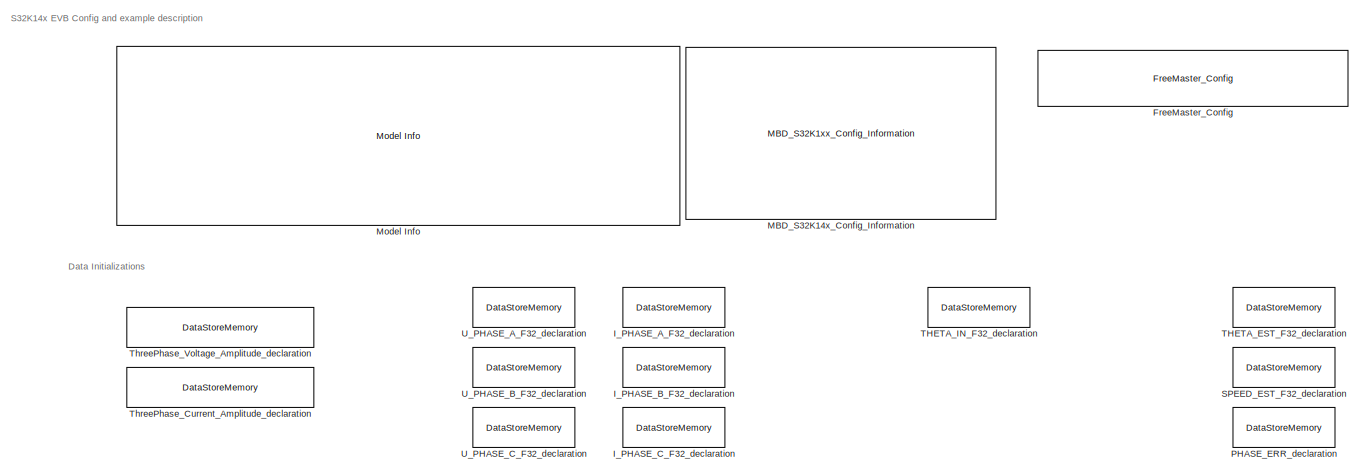
[diagram: root canvas - part 1/3, top center region]
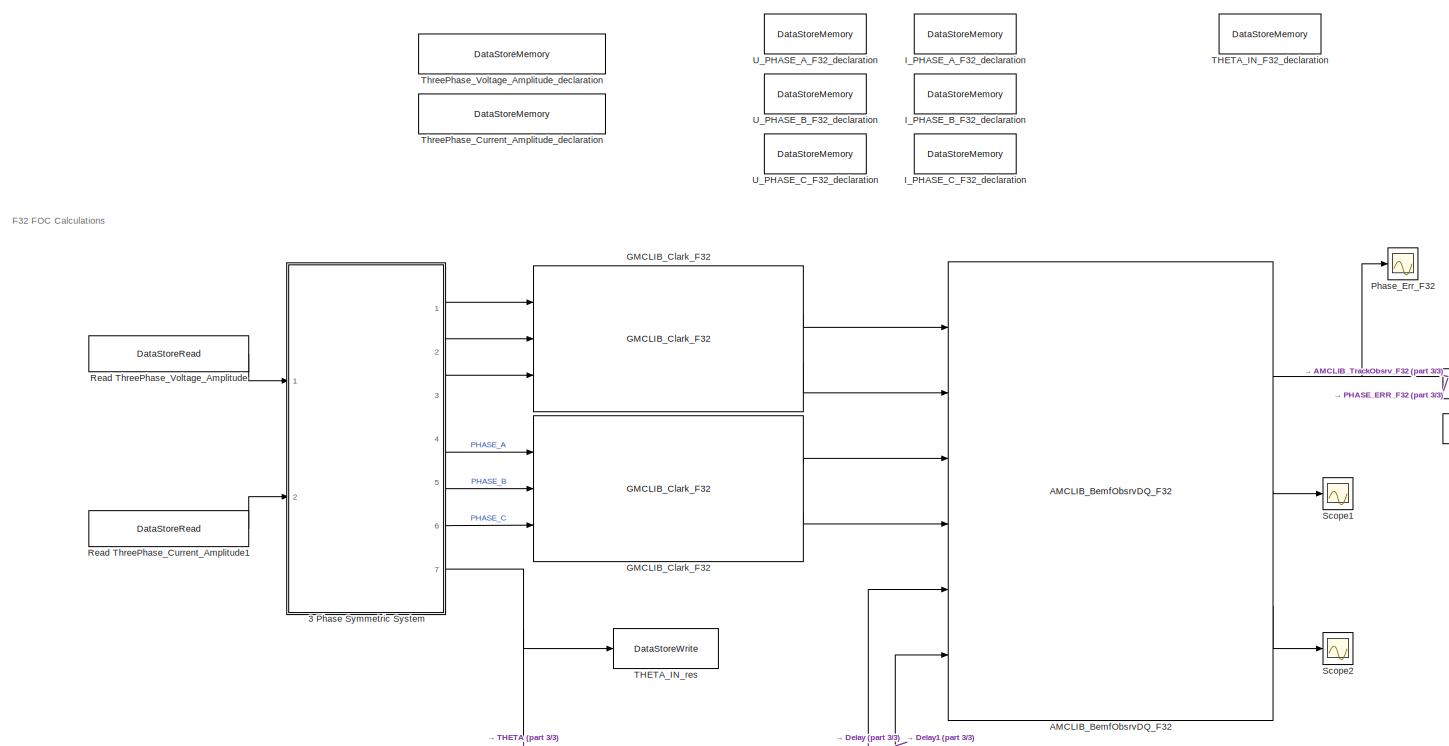
[diagram: root canvas - part 2/3, central region]
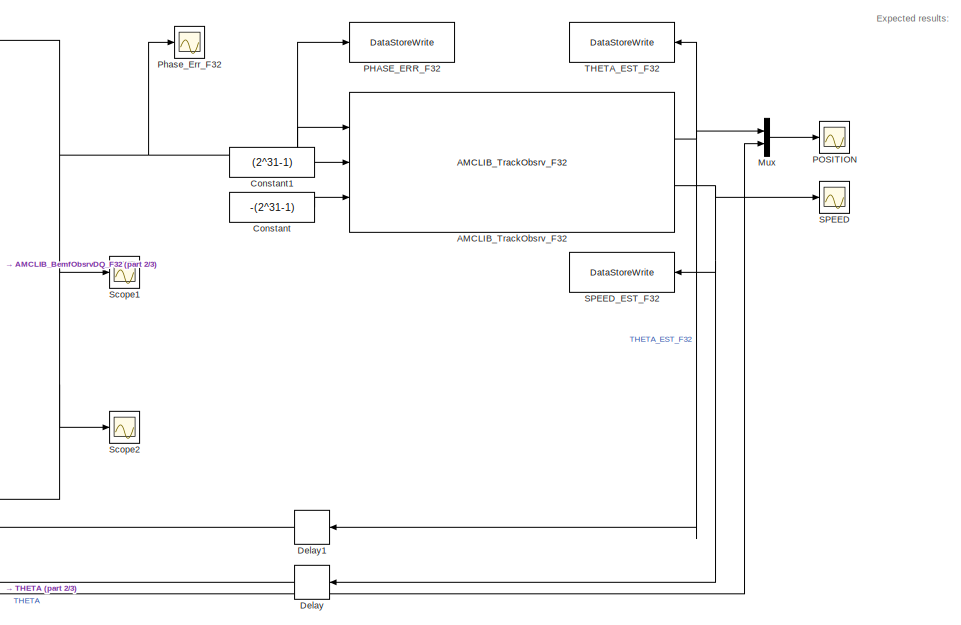
[diagram: root canvas - part 3/3, bottom right region]
MODEL ammclib_amclib_observer_F32_s32k14x
KIND model
CONFIG InitFcn = mbd_s32k_consistency_checks(bdroot(gcs));
CONFIG PostLoadFcn = ammclib_amclib_observer_s32k14x_param();
BLOCK [DataStoreRead]  Read ThreePhase_Current_Amplitude1
  DataStoreName = ThreePhase_Current_Amplitude
  Ports = [0, 1]
  SID = 1142
BLOCK [DataStoreRead]  Read ThreePhase_Voltage_Amplitude
  DataStoreName = ThreePhase_Voltage_Amplitude
  Ports = [0, 1]
  SID = 989
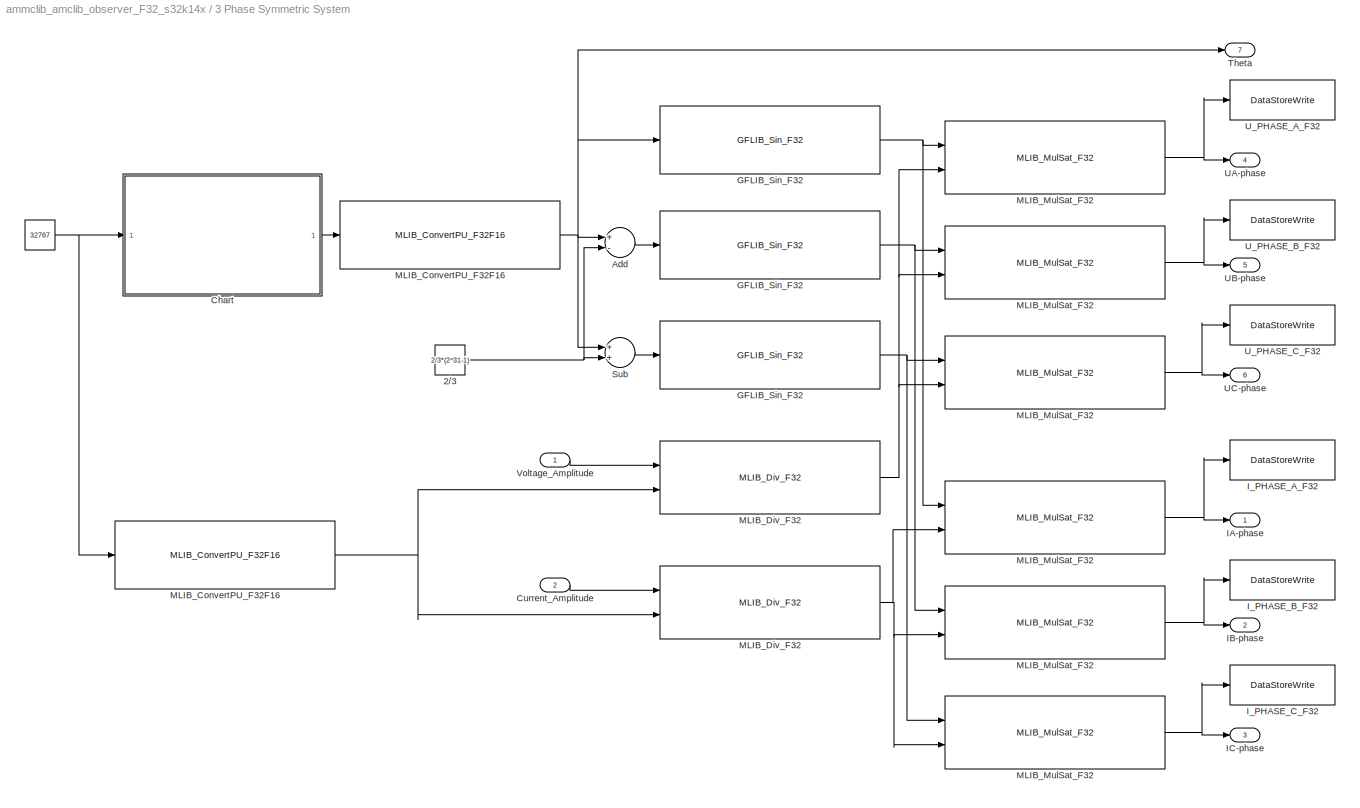
BLOCK [SubSystem] 3 Phase Symmetric System
  Ports = [2, 7]
  RequestExecContextInheritance = off
  SID = 990
  Variant = off
BLOCK [Constant] 3 Phase Symmetric System/ 
  OutDataTypeStr = int16
  SID = 1017
  Value = 32767
BLOCK [Reference] 3 Phase Symmetric System/  MLIB_MulSat_F32    REF=ammclib_bam_s32k14x/MLIB/bam_f32/MLIB_MulSat_F32  (lib defined in mdl_f341c9dd7fd9)
  Ports = [2, 1]
  SID = 1148
  SourceBlock = ammclib_bam_s32k14x/MLIB/bam_f32/MLIB_MulSat_F32
  SourceType = MLIB_MulSat_F32
BLOCK [Reference] 3 Phase Symmetric System/ MLIB_MulSat_F32  REF=ammclib_bam_s32k14x/MLIB/bam_f32/MLIB_MulSat_F32  (lib defined in mdl_f341c9dd7fd9)
  Ports = [2, 1]
  SID = 1146
  SourceBlock = ammclib_bam_s32k14x/MLIB/bam_f32/MLIB_MulSat_F32
  SourceType = MLIB_MulSat_F32
BLOCK [Reference] 3 Phase Symmetric System/ MLIB_MulSat_F32   REF=ammclib_bam_s32k14x/MLIB/bam_f32/MLIB_MulSat_F32  (lib defined in mdl_f341c9dd7fd9)
  Ports = [2, 1]
  SID = 1147
  SourceBlock = ammclib_bam_s32k14x/MLIB/bam_f32/MLIB_MulSat_F32
  SourceType = MLIB_MulSat_F32
BLOCK [Constant] 3 Phase Symmetric System/2//3
  OutDataTypeStr = int32
  SID = 1182
  Value = 2/3*(2^31-1)
BLOCK [Sum] 3 Phase Symmetric System/Add
  InputSameDT = off
  Inputs = +-
  OutDataTypeStr = Inherit: Inherit via internal rule
  Ports = [2, 1]
  SID = 996
  SaturateOnIntegerOverflow = off
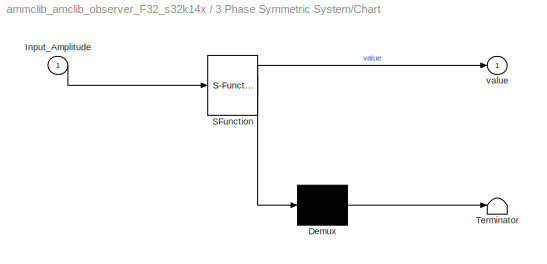
BLOCK [SubSystem] 3 Phase Symmetric System/Chart
  ErrorFcn = Stateflow.Translate.translate
  PermitHierarchicalResolution = ExplicitOnly
  Ports = [1, 1]
  RequestExecContextInheritance = off
  SFBlockType = Chart
  SID = 992
  TreatAsAtomicUnit = on
  Variant = off
BLOCK [Demux] 3 Phase Symmetric System/Chart/ Demux 
  Outputs = 1
  Ports = [1, 1]
  SID = 992::35
BLOCK [S-Function] 3 Phase Symmetric System/Chart/ SFunction 
  EnableBusSupport = off
  FunctionName = sf_sfun
  PortCounts = [1 2]
  Ports = [1, 2]
  SFcnIsStateOwnerBlock = off
  SFunctionDeploymentMode = off
  SID = 992::34
  Tag = Stateflow S-Function ammclib_amclib_observer_F32_s32k14x 4
BLOCK [Terminator] 3 Phase Symmetric System/Chart/ Terminator 
  SID = 992::36
BLOCK [Inport] 3 Phase Symmetric System/Chart/Input_Amplitude
  IconDisplay = Port number
  SID = 992::30
BLOCK [Outport] 3 Phase Symmetric System/Chart/value
  IconDisplay = Port number
  SID = 992::5
BLOCK [Inport] 3 Phase Symmetric System/Current_Amplitude
  IconDisplay = Port number
  Port = 2
  SID = 1141
BLOCK [Reference] 3 Phase Symmetric System/GFLIB_Sin_F32  REF=ammclib_bam_s32k14x/GFLIB/bam_f32/GFLIB_Sin_F32  (lib defined in mdl_f341c9dd7fd9)
  Ports = [1, 1]
  SID = 1012
  SourceBlock = ammclib_bam_s32k14x/GFLIB/bam_f32/GFLIB_Sin_F32
  SourceType = GFLIB_Sin_F32
BLOCK [Reference] 3 Phase Symmetric System/GFLIB_Sin_F32   REF=ammclib_bam_s32k14x/GFLIB/bam_f32/GFLIB_Sin_F32  (lib defined in mdl_f341c9dd7fd9)
  Ports = [1, 1]
  SID = 1021
  SourceBlock = ammclib_bam_s32k14x/GFLIB/bam_f32/GFLIB_Sin_F32
  SourceType = GFLIB_Sin_F32
BLOCK [Reference] 3 Phase Symmetric System/GFLIB_Sin_F32    REF=ammclib_bam_s32k14x/GFLIB/bam_f32/GFLIB_Sin_F32  (lib defined in mdl_f341c9dd7fd9)
  Ports = [1, 1]
  SID = 1022
  SourceBlock = ammclib_bam_s32k14x/GFLIB/bam_f32/GFLIB_Sin_F32
  SourceType = GFLIB_Sin_F32
BLOCK [Outport] 3 Phase Symmetric System/IA-phase
  IconDisplay = Port number
  SID = 1152
BLOCK [Outport] 3 Phase Symmetric System/IB-phase
  IconDisplay = Port number
  Port = 2
  SID = 1153
BLOCK [Outport] 3 Phase Symmetric System/IC-phase
  IconDisplay = Port number
  Port = 3
  SID = 1154
BLOCK [DataStoreWrite] 3 Phase Symmetric System/I_PHASE_A_F32
  DataStoreName = I_PHASE_A_F32
  Ports = [1]
  SID = 1149
BLOCK [DataStoreWrite] 3 Phase Symmetric System/I_PHASE_B_F32
  DataStoreName = I_PHASE_B_F32
  Ports = [1]
  SID = 1150
BLOCK [DataStoreWrite] 3 Phase Symmetric System/I_PHASE_C_F32
  DataStoreName = I_PHASE_C_F32
  Ports = [1]
  SID = 1151
BLOCK [Reference] 3 Phase Symmetric System/MLIB_ConvertPU_F32F16  REF=ammclib_bam_s32k14x/MLIB/bam_f32/MLIB_ConvertPU_F32F16  (lib defined in mdl_f341c9dd7fd9)
  Ports = [1, 1]
  SID = 1181
  SourceBlock = ammclib_bam_s32k14x/MLIB/bam_f32/MLIB_ConvertPU_F32F16
  SourceType = MLIB_ConvertPU_F32
BLOCK [Reference] 3 Phase Symmetric System/MLIB_ConvertPU_F32F16      REF=ammclib_bam_s32k14x/MLIB/bam_f32/MLIB_ConvertPU_F32F16  (lib defined in mdl_f341c9dd7fd9)
  Ports = [1, 1]
  SID = 1183
  SourceBlock = ammclib_bam_s32k14x/MLIB/bam_f32/MLIB_ConvertPU_F32F16
  SourceType = MLIB_ConvertPU_F32
BLOCK [Reference] 3 Phase Symmetric System/MLIB_Div_F32  REF=ammclib_bam_s32k14x/MLIB/bam_f32/MLIB_Div_F32  (lib defined in mdl_f341c9dd7fd9)
  Ports = [2, 1]
  SID = 1028
  SourceBlock = ammclib_bam_s32k14x/MLIB/bam_f32/MLIB_Div_F32
  SourceType = MLIB_Div_F32
BLOCK [Reference] 3 Phase Symmetric System/MLIB_Div_F32    REF=ammclib_bam_s32k14x/MLIB/bam_f32/MLIB_Div_F32  (lib defined in mdl_f341c9dd7fd9)
  Ports = [2, 1]
  SID = 1145
  SourceBlock = ammclib_bam_s32k14x/MLIB/bam_f32/MLIB_Div_F32
  SourceType = MLIB_Div_F32
BLOCK [Reference] 3 Phase Symmetric System/MLIB_MulSat_F32  REF=ammclib_bam_s32k14x/MLIB/bam_f32/MLIB_MulSat_F32  (lib defined in mdl_f341c9dd7fd9)
  Ports = [2, 1]
  SID = 1031
  SourceBlock = ammclib_bam_s32k14x/MLIB/bam_f32/MLIB_MulSat_F32
  SourceType = MLIB_MulSat_F32
BLOCK [Reference] 3 Phase Symmetric System/MLIB_MulSat_F32   REF=ammclib_bam_s32k14x/MLIB/bam_f32/MLIB_MulSat_F32  (lib defined in mdl_f341c9dd7fd9)
  Ports = [2, 1]
  SID = 1033
  SourceBlock = ammclib_bam_s32k14x/MLIB/bam_f32/MLIB_MulSat_F32
  SourceType = MLIB_MulSat_F32
BLOCK [Reference] 3 Phase Symmetric System/MLIB_MulSat_F32    REF=ammclib_bam_s32k14x/MLIB/bam_f32/MLIB_MulSat_F32  (lib defined in mdl_f341c9dd7fd9)
  Ports = [2, 1]
  SID = 1034
  SourceBlock = ammclib_bam_s32k14x/MLIB/bam_f32/MLIB_MulSat_F32
  SourceType = MLIB_MulSat_F32
BLOCK [Sum] 3 Phase Symmetric System/Sub
  InputSameDT = off
  OutDataTypeStr = Inherit: Inherit via internal rule
  Ports = [2, 1]
  SID = 998
  SaturateOnIntegerOverflow = off
BLOCK [Outport] 3 Phase Symmetric System/Theta
  IconDisplay = Port number
  Port = 7
  SID = 1049
BLOCK [Outport] 3 Phase Symmetric System/UA-phase
  IconDisplay = Port number
  Port = 4
  SID = 994
BLOCK [Outport] 3 Phase Symmetric System/UB-phase
  IconDisplay = Port number
  Port = 5
  SID = 995
BLOCK [Outport] 3 Phase Symmetric System/UC-phase
  IconDisplay = Port number
  Port = 6
  SID = 997
BLOCK [DataStoreWrite] 3 Phase Symmetric System/U_PHASE_A_F32
  DataStoreName = U_PHASE_A_F32
  Ports = [1]
  SID = 1077
BLOCK [DataStoreWrite] 3 Phase Symmetric System/U_PHASE_B_F32
  DataStoreName = U_PHASE_B_F32
  Ports = [1]
  SID = 1078
BLOCK [DataStoreWrite] 3 Phase Symmetric System/U_PHASE_C_F32
  DataStoreName = U_PHASE_C_F32
  Ports = [1]
  SID = 1079
BLOCK [Inport] 3 Phase Symmetric System/Voltage_Amplitude 
  IconDisplay = Port number
  SID = 991
BLOCK [Reference] AMCLIB_BemfObsrvDQ_F32  REF=ammclib_bam_s32k14x/AMCLIB/bam_f32/AMCLIB_BemfObsrvDQ_F32  (lib defined in mdl_f341c9dd7fd9)
  Ports = [6, 3]
  SID = 1129
  SourceBlock = ammclib_bam_s32k14x/AMCLIB/bam_f32/AMCLIB_BemfObsrvDQ_F32
  SourceType = AMCLIB_BemfObsrvDQ_F32
  f32CC1sc_D = f32CC1sc_D
  f32CC1sc_Q = f32CC1sc_Q
  f32CC2sc_D = f32CC2sc_D
  f32CC2sc_Q = f32CC2sc_Q
  f32EGain = f32EGain
  f32IGain = f32IGain
  f32LowerLimit_D = f32LowerLimit_D
  f32LowerLimit_Q = f32LowerLimit_Q
  f32UGain = f32UGain
  f32UpperLimit_D = f32UpperLimit_D
  f32UpperLimit_Q = f32UpperLimit_Q
  f32WIGain = f32WIGain
  s16Shift = s16Shift
  u16NShift = u16NShift
BLOCK [Reference] AMCLIB_TrackObsrv_F32  REF=ammclib_bam_s32k14x/AMCLIB/bam_f32/AMCLIB_TrackObsrv_F32  (lib defined in mdl_f341c9dd7fd9)
  Ports = [3, 2]
  SID = 1165
  SourceBlock = ammclib_bam_s32k14x/AMCLIB/bam_f32/AMCLIB_TrackObsrv_F32
  SourceType = AMCLIB_TrackObsrv_F32
  f32C1 = f32C1
  f32CC1sc = f32CC1sc
  f32CC2sc = f32CC2sc
  u16IntegNShift = u16IntegNShift
  u16NShift = u16NShift
BLOCK [Constant] Constant
  OutDataTypeStr = Inherit: Inherit via back propagation
  SID = 1166
  Value = -(2^31-1)
BLOCK [Constant] Constant1
  OutDataTypeStr = Inherit: Inherit via back propagation
  SID = 1168
  Value = (2^31-1)
BLOCK [Delay] Delay
  DelayLength = 1
  InitialCondition = 0
  InputPortMap = u0
  Ports = [1, 1]
  SID = 1171
BLOCK [Delay] Delay1
  DelayLength = 1
  InitialCondition = 0
  InputPortMap = u0
  Ports = [1, 1]
  SID = 1172
BLOCK [Reference] FreeMaster_Config  REF=mbd_s32k1xx_ec_toolbox/Utility Blocks/FreeMaster_Config
  Ports = []
  SID = 564
  SourceBlock = mbd_s32k1xx_ec_toolbox/Utility Blocks/FreeMaster_Config
  SourceType = fm_s32k_config
  baudrate = 115200
  comm_buffer_size = 255
  comm_buffer_size_auto = on
  comm_rqueue_size = 32
  comm_rqueue_size_default = on
  interface = LPUART1
  isr_prio = 1
  max_rec_vars = 8
  max_scope_vars = 8
  mode = Short Interrupt
  rec_buff_size = 1024
  rec_timebase = 0
  rec_timebase_unit = milliseconds
  rxd = PTC6: [LPUART1_RX | Receive]
  show_adv_opts = on
  txd = PTC7: [LPUART1_TX | Transmit]
  use_recorder = on
  use_scope = on
BLOCK [Reference] GMCLIB_Clark_F32  REF=ammclib_bam_s32k14x/GMCLIB/bam_f32/GMCLIB_Clark_F32  (lib defined in mdl_f341c9dd7fd9)
  Ports = [3, 2]
  SID = 1035
  SourceBlock = ammclib_bam_s32k14x/GMCLIB/bam_f32/GMCLIB_Clark_F32
  SourceType = GMCLIB_Clark_F32
BLOCK [Reference] GMCLIB_Clark_F32   REF=ammclib_bam_s32k14x/GMCLIB/bam_f32/GMCLIB_Clark_F32  (lib defined in mdl_f341c9dd7fd9)
  Ports = [3, 2]
  SID = 1159
  SourceBlock = ammclib_bam_s32k14x/GMCLIB/bam_f32/GMCLIB_Clark_F32
  SourceType = GMCLIB_Clark_F32
BLOCK [DataStoreMemory] I_PHASE_A_F32_declaration
  DataStoreName = I_PHASE_A_F32
  OutDataTypeStr = int32
  Priority = 2
  ReadBeforeWriteMsg = warning
  SID = 1155
  ShowAdditionalParam = off
  WriteAfterReadMsg = warning
  WriteAfterWriteMsg = warning
BLOCK [DataStoreMemory] I_PHASE_B_F32_declaration
  DataStoreName = I_PHASE_B_F32
  OutDataTypeStr = int32
  Priority = 2
  ReadBeforeWriteMsg = warning
  SID = 1156
  ShowAdditionalParam = off
  WriteAfterReadMsg = warning
  WriteAfterWriteMsg = warning
BLOCK [DataStoreMemory] I_PHASE_C_F32_declaration
  DataStoreName = I_PHASE_C_F32
  OutDataTypeStr = int32
  Priority = 2
  ReadBeforeWriteMsg = warning
  SID = 1157
  ShowAdditionalParam = off
  WriteAfterReadMsg = warning
  WriteAfterWriteMsg = warning
BLOCK [Reference] MBD_S32K14x_Config_Information  REF=mbd_s32k1xx_ec_toolbox/MBD_S32K1xx_Config_Information
  ADC_PcrCheckEnDis = on
  AMMCLIB_PcrCheckEnDis = on
  CMP_PcrCheckEnDis = on
  CSEc_PcrCheckEnDis = on
  ConfigParams_PcrCheckEnDis = on
  FM_PcrCheckEnDis = on
  FTM_Dual_Edge_Inputs_PcrCheckEnDis = on
  FTM_Hall_Sensor_Inputs_PcrCheckEnDis = on
  FTM_Input_Edge_Inputs_PcrCheckEnDis = on
  FTM_PWM_PcrCheckEnDis = on
  FTM_Quadrature_Inputs_PcrCheckEnDis = on
  FlexCAN_PcrCheckEnDis = on
  FlexIO_PcrCheckEnDis = on
  GPIO_InputPcrCheckEnDis = on
  GPIO_OutputPcrCheckEnDis = on
  LIN_PcrCheckEnDis = on
  LPI2C_PcrCheckEnDis = on
  LPSPI_PcrCheckEnDis = on
  LPTMR_PcrCheckEnDis = on
  LPUART_PcrCheckEnDis = on
  ModelRef_PcrCheckEnDis = on
  PDB0_PcrCheckEnDis = on
  PIT_PcrCheckEnDis = on
  Ports = []
  Priority = 0
  Profile_PcrCheckEnDis = on
  RTC_PcrCheckEnDis = on
  SBC_PcrCheckEnDis = on
  SID = 1
  SourceBlock = mbd_s32k1xx_ec_toolbox/MBD_S32K1xx_Config_Information
  SourceType = MBDTBX_EC_S32K
  WDOG_PcrCheckEnDis = on
  config_params = []
  disp_str = Target : S32K142-16KB_SRAM\nPackage : 100-pin\nSystem clock : 80 MHz\nXTAL clock : External 8 MHz\nCompiler : GCC\nTarget Type : FLASH\nDownload Code after build : (OpenSDA: E)\nStep Tick Interrupt Priority : 15
  ds_import_enable = on
  eDMA_PcrCheckEnDis = on
  gcc_target_assemble_opts = -mcpu=cortex-m4 -mthumb -mfloat-abi=hard -mfpu=fpv4-sp-d16 -g
  gcc_target_compile_opts = -mcpu=cortex-m4 -mthumb -mfloat-abi=hard -mfpu=fpv4-sp-d16 -O1 -g -gstrict-dwarf
  gcc_target_default_lcf = on
  gcc_target_link_opts = -mcpu=cortex-m4 -mthumb -mfloat-abi=hard -mfpu=fpv4-sp-d16
  gcc_target_user_lcf = S32K144_64_flash.ld
  ghs_target_assemble_opts = -cpu=cortexm4f -fpu=vfpv4_d16
  ghs_target_compile_opts = -cpu=cortexm4f -thumb -DARM_MATH_CM4 -fpu=vfpv4_d16 -fsingle -Ogeneral -Wundef -Wimplicit-int -Wshadow -Wtrigraphs --no_commons --gnu_asm -gnu99 -gdwarf-2 -G
  ghs_target_default_lcf = off
  ghs_target_link_opts = -cpu=cortexm4f -thumb -fpu=vfpv4_d16
  ghs_target_user_lcf = S32K144_64_flash.ld
  iar_target_assemble_opts = --cpu Cortex-M4F --thumb --fpu VFPv4_sp
  iar_target_compile_opts = --cpu=Cortex-M4F --thumb --fpu=VFPv4_sp -Ol -e --debug --dlib_config normal
  iar_target_default_lcf = off
  iar_target_link_opts = --no_exceptions --vfe --inline
  iar_target_user_lcf = S32K144_64_flash.icf
  mbdt_ver = 0
  mcu_steptick_prio = 15
  mcu_steptick_timer = LPIT Channel 0
  mcu_system_clock_freq = 80
  mcu_target_name = S32K144
  mcu_target_package = 100-LQFP
  mcu_target_sram_size = 64KB
  mcu_xtal_freq = External 8
  pil_download_enable = off
  pil_download_rate = 57600
  pil_opensda_drive = Custom
  pil_opensda_drive_custom = D
  pil_uart_instance = 0
  pil_uart_rx = PTA2: [LPUART0_RX | Receive]
  pil_uart_tx = PTA3: [LPUART0_TX | Transmit]
  rbl_com_port = Custom
  rbl_com_port_custom = COM1
  rbl_download_enable = on
  rbl_download_interface = OpenSDA
  rbl_restart_request = off
  rbl_start_delay = 5000000
  target_compiler = GCC
  target_memory = FLASH
BLOCK [Reference] Model Info  REF=simulink/Model-Wide\nUtilities/Model Info
  DisplayStringWithTags = Model Name: %<ModelName>\n\nDescription: %<Description>
  Frame = off
  HorizontalTextAlignment = Left
  LeftAlignmentValue = 0.02
  MaskDisplayString = Model Name: ammclib_amclib_observer_F32_s32k14x\\n\\nDescription: This model tests the AMMCLIB AMCLIB OBSERVER F32 blocks\\n\\nValidation:\\n- Run the model in Simulation and check the results\\n- Open Freemaster (ammclib_amclib_observer_F32_s32k14x.pmp) and compare the HW results against the Simulated ones
  Ports = []
  SID = 524
  SourceBlock = simulink/Model-Wide\nUtilities/Model Info
  SourceProductBaseCode = SL
  SourceProductName = Simulink
  SourceType = CMBlock
BLOCK [Mux] Mux
  DisplayOption = bar
  Inputs = 2
  Ports = [2, 1]
  SID = 1174
BLOCK [DataStoreWrite] PHASE_ERR_F32
  DataStoreName = PHASE_ERR_F32
  Ports = [1]
  SID = 1178
BLOCK [DataStoreMemory] PHASE_ERR_declaration
  DataStoreName = PHASE_ERR_F32
  OutDataTypeStr = int32
  Priority = 2
  ReadBeforeWriteMsg = warning
  SID = 1177
  ShowAdditionalParam = off
  WriteAfterReadMsg = warning
  WriteAfterWriteMsg = warning
BLOCK [Scope] POSITION
  NumInputPorts = 1
  Ports = [1]
  SID = 1175
  ScopeSpecificationString = Simulink.scopes.TimeScopeBlockCfg('CurrentConfiguration', extmgr.ConfigurationSet(extmgr.Configuration('Core','General UI',true),extmgr.Configuration('Core','Source UI',true),extmgr.Configuration('Sources','WiredSimulink',true),extmgr.Configuration('Visuals','Time Domain',true,'SerializedDisplays',{struct('MinYLimReal','-2684011024.625','MaxYLimReal','2684243571.625','YLabelReal','','MinYLimMag','...<+1399ch>
BLOCK [Scope] Phase_Err_F32
  NumInputPorts = 1
  Ports = [1]
  SID = 1135
  ScopeSpecificationString = Simulink.scopes.TimeScopeBlockCfg('CurrentConfiguration', extmgr.ConfigurationSet(extmgr.Configuration('Core','General UI',true),extmgr.Configuration('Core','Source UI',true),extmgr.Configuration('Sources','WiredSimulink',true,'DataLoggingVariableName','ScopeData1'),extmgr.Configuration('Visuals','Time Domain',true,'SerializedDisplays',{struct('MinYLimReal','-721.25','MaxYLimReal','1481.25','YLabe...<+1383ch>
BLOCK [Scope] SPEED
  NumInputPorts = 1
  Ports = [1]
  SID = 1170
  ScopeSpecificationString = Simulink.scopes.TimeScopeBlockCfg('CurrentConfiguration', extmgr.ConfigurationSet(extmgr.Configuration('Core','General UI',true),extmgr.Configuration('Core','Source UI',true),extmgr.Configuration('Sources','WiredSimulink',true,'DataLoggingVariableName','ScopeData9'),extmgr.Configuration('Visuals','Time Domain',true,'SerializedDisplays',{struct('MinYLimReal','-7907686.375','MaxYLimReal','27660357.3...<+1420ch>
BLOCK [DataStoreWrite] SPEED_EST_F32
  DataStoreName = SPEED_EST_F32
  Ports = [1]
  SID = 1180
BLOCK [DataStoreMemory] SPEED_EST_F32_declaration
  DataStoreName = SPEED_EST_F32
  OutDataTypeStr = int32
  Priority = 2
  ReadBeforeWriteMsg = warning
  SID = 1176
  ShowAdditionalParam = off
  WriteAfterReadMsg = warning
  WriteAfterWriteMsg = warning
BLOCK [Scope] Scope1
  NumInputPorts = 1
  Ports = [1]
  SID = 1136
  ScopeSpecificationString = Simulink.scopes.TimeScopeBlockCfg('CurrentConfiguration', extmgr.ConfigurationSet(extmgr.Configuration('Core','General UI',true),extmgr.Configuration('Core','Source UI',true),extmgr.Configuration('Sources','WiredSimulink',true,'DataLoggingVariableName','ScopeData2'),extmgr.Configuration('Visuals','Time Domain',true,'SerializedDisplays',{struct('MinYLimReal','-2105.625','MaxYLimReal','320.625','YLa...<+1391ch>
BLOCK [Scope] Scope2
  NumInputPorts = 1
  Ports = [1]
  SID = 1137
  ScopeSpecificationString = Simulink.scopes.TimeScopeBlockCfg('CurrentConfiguration', extmgr.ConfigurationSet(extmgr.Configuration('Core','General UI',true),extmgr.Configuration('Core','Source UI',true),extmgr.Configuration('Sources','WiredSimulink',true,'DataLoggingVariableName','ScopeData3'),extmgr.Configuration('Visuals','Time Domain',true,'SerializedDisplays',{struct('MinYLimReal','-10322.00000','MaxYLimReal','18958.0000...<+1413ch>
BLOCK [DataStoreWrite] THETA_EST_F32
  DataStoreName = THETA_EST_F32
  Ports = [1]
  SID = 1179
BLOCK [DataStoreMemory] THETA_EST_F32_declaration
  DataStoreName = THETA_EST_F32
  OutDataTypeStr = int32
  Priority = 2
  ReadBeforeWriteMsg = warning
  SID = 1173
  ShowAdditionalParam = off
  WriteAfterReadMsg = warning
  WriteAfterWriteMsg = warning
BLOCK [DataStoreMemory] THETA_IN_F32_declaration
  DataStoreName = THETA_IN_F32
  OutDataTypeStr = int32
  Priority = 2
  ReadBeforeWriteMsg = warning
  SID = 580
  ShowAdditionalParam = off
  WriteAfterReadMsg = warning
  WriteAfterWriteMsg = warning
BLOCK [DataStoreWrite] THETA_IN_res
  DataStoreName = THETA_IN_F32
  Ports = [1]
  SID = 707
BLOCK [DataStoreMemory] ThreePhase_Current_Amplitude_declaration
  DataStoreName = ThreePhase_Current_Amplitude
  InitialValue = 0.3*(2^31-1)
  OutDataTypeStr = int32
  OutMax = 2^31-1
  OutMin = -(2^31-1)
  Priority = 1
  SID = 1140
  ShowAdditionalParam = off
  WriteAfterReadMsg = warning
  WriteAfterWriteMsg = warning
BLOCK [DataStoreMemory] ThreePhase_Voltage_Amplitude_declaration
  DataStoreName = ThreePhase_Voltage_Amplitude
  InitialValue = 0.61*(2^31-1)
  OutDataTypeStr = int32
  OutMax = 2^31-1
  OutMin = -(2^31-1)
  Priority = 1
  SID = 988
  ShowAdditionalParam = off
  WriteAfterReadMsg = warning
  WriteAfterWriteMsg = warning
BLOCK [DataStoreMemory] U_PHASE_A_F32_declaration
  DataStoreName = U_PHASE_A_F32
  OutDataTypeStr = int32
  Priority = 2
  ReadBeforeWriteMsg = warning
  SID = 778
  ShowAdditionalParam = off
  WriteAfterReadMsg = warning
  WriteAfterWriteMsg = warning
BLOCK [DataStoreMemory] U_PHASE_B_F32_declaration
  DataStoreName = U_PHASE_B_F32
  OutDataTypeStr = int32
  Priority = 2
  ReadBeforeWriteMsg = warning
  SID = 1075
  ShowAdditionalParam = off
  WriteAfterReadMsg = warning
  WriteAfterWriteMsg = warning
BLOCK [DataStoreMemory] U_PHASE_C_F32_declaration
  DataStoreName = U_PHASE_C_F32
  OutDataTypeStr = int32
  Priority = 2
  ReadBeforeWriteMsg = warning
  SID = 1076
  ShowAdditionalParam = off
  WriteAfterReadMsg = warning
  WriteAfterWriteMsg = warning
ANNOTATION (root): \n \n Expected results: \n
ANNOTATION (root): Data Initializations
ANNOTATION (root): F32 FOC Calculations
ANNOTATION (root): S32K14x EVB Config and example description
LINE  Read ThreePhase_Current_Amplitude1:1 -> 3 Phase Symmetric System:2
LINE  Read ThreePhase_Voltage_Amplitude:1 -> 3 Phase Symmetric System:1
NET 3 Phase Symmetric System/  MLIB_MulSat_F32  :1 -> 3 Phase Symmetric System/IC-phase:1, 3 Phase Symmetric System/I_PHASE_C_F32:1
NET 3 Phase Symmetric System/ :1 -> 3 Phase Symmetric System/Chart:1, 3 Phase Symmetric System/MLIB_ConvertPU_F32F16    :1
NET 3 Phase Symmetric System/ MLIB_MulSat_F32 :1 -> 3 Phase Symmetric System/IB-phase:1, 3 Phase Symmetric System/I_PHASE_B_F32:1
NET 3 Phase Symmetric System/ MLIB_MulSat_F32:1 -> 3 Phase Symmetric System/IA-phase:1, 3 Phase Symmetric System/I_PHASE_A_F32:1
NET 3 Phase Symmetric System/2//3:1 -> 3 Phase Symmetric System/Add:2, 3 Phase Symmetric System/Sub:2
LINE 3 Phase Symmetric System/Add:1 -> 3 Phase Symmetric System/GFLIB_Sin_F32 :1
LINE 3 Phase Symmetric System/Chart/ Demux :1 -> 3 Phase Symmetric System/Chart/ Terminator :1
LINE 3 Phase Symmetric System/Chart/ SFunction :1 -> 3 Phase Symmetric System/Chart/ Demux :1
LINE 3 Phase Symmetric System/Chart/ SFunction :2 -> 3 Phase Symmetric System/Chart/value:1
LINE 3 Phase Symmetric System/Chart/Input_Amplitude:1 -> 3 Phase Symmetric System/Chart/ SFunction :1
LINE 3 Phase Symmetric System/Chart:1 -> 3 Phase Symmetric System/MLIB_ConvertPU_F32F16:1
LINE 3 Phase Symmetric System/Current_Amplitude:1 -> 3 Phase Symmetric System/MLIB_Div_F32  :1
NET 3 Phase Symmetric System/GFLIB_Sin_F32  :1 -> 3 Phase Symmetric System/  MLIB_MulSat_F32  :1, 3 Phase Symmetric System/MLIB_MulSat_F32  :1
NET 3 Phase Symmetric System/GFLIB_Sin_F32 :1 -> 3 Phase Symmetric System/ MLIB_MulSat_F32 :1, 3 Phase Symmetric System/MLIB_MulSat_F32 :1
NET 3 Phase Symmetric System/GFLIB_Sin_F32:1 -> 3 Phase Symmetric System/ MLIB_MulSat_F32:1, 3 Phase Symmetric System/MLIB_MulSat_F32:1
NET 3 Phase Symmetric System/MLIB_ConvertPU_F32F16    :1 -> 3 Phase Symmetric System/MLIB_Div_F32  :2, 3 Phase Symmetric System/MLIB_Div_F32:2
NET 3 Phase Symmetric System/MLIB_ConvertPU_F32F16:1 -> 3 Phase Symmetric System/Add:1, 3 Phase Symmetric System/GFLIB_Sin_F32:1, 3 Phase Symmetric System/Sub:1, 3 Phase Symmetric System/Theta:1
NET 3 Phase Symmetric System/MLIB_Div_F32  :1 -> 3 Phase Symmetric System/  MLIB_MulSat_F32  :2, 3 Phase Symmetric System/ MLIB_MulSat_F32 :2, 3 Phase Symmetric System/ MLIB_MulSat_F32:2
NET 3 Phase Symmetric System/MLIB_Div_F32:1 -> 3 Phase Symmetric System/MLIB_MulSat_F32  :2, 3 Phase Symmetric System/MLIB_MulSat_F32 :2, 3 Phase Symmetric System/MLIB_MulSat_F32:2
NET 3 Phase Symmetric System/MLIB_MulSat_F32  :1 -> 3 Phase Symmetric System/UC-phase:1, 3 Phase Symmetric System/U_PHASE_C_F32:1
NET 3 Phase Symmetric System/MLIB_MulSat_F32 :1 -> 3 Phase Symmetric System/UB-phase:1, 3 Phase Symmetric System/U_PHASE_B_F32:1
NET 3 Phase Symmetric System/MLIB_MulSat_F32:1 -> 3 Phase Symmetric System/UA-phase:1, 3 Phase Symmetric System/U_PHASE_A_F32:1
LINE 3 Phase Symmetric System/Sub:1 -> 3 Phase Symmetric System/GFLIB_Sin_F32  :1
LINE 3 Phase Symmetric System/Voltage_Amplitude :1 -> 3 Phase Symmetric System/MLIB_Div_F32:1
LINE 3 Phase Symmetric System:1 -> GMCLIB_Clark_F32:1
LINE 3 Phase Symmetric System:2 -> GMCLIB_Clark_F32:2
LINE 3 Phase Symmetric System:3 -> GMCLIB_Clark_F32:3
LINE 3 Phase Symmetric System:4 -> GMCLIB_Clark_F32 :1
LINE 3 Phase Symmetric System:5 -> GMCLIB_Clark_F32 :2
LINE 3 Phase Symmetric System:6 -> GMCLIB_Clark_F32 :3
NET 3 Phase Symmetric System:7 -> Mux:2, THETA_IN_res:1
NET AMCLIB_BemfObsrvDQ_F32:1 -> AMCLIB_TrackObsrv_F32:1, PHASE_ERR_F32:1, Phase_Err_F32:1
LINE AMCLIB_BemfObsrvDQ_F32:2 -> Scope1:1
LINE AMCLIB_BemfObsrvDQ_F32:3 -> Scope2:1
NET AMCLIB_TrackObsrv_F32:1 -> Delay1:1, Mux:1, THETA_EST_F32:1
NET AMCLIB_TrackObsrv_F32:2 -> Delay:1, SPEED:1, SPEED_EST_F32:1
LINE Constant1:1 -> AMCLIB_TrackObsrv_F32:2
LINE Constant:1 -> AMCLIB_TrackObsrv_F32:3
LINE Delay1:1 -> AMCLIB_BemfObsrvDQ_F32:6
LINE Delay:1 -> AMCLIB_BemfObsrvDQ_F32:5
LINE GMCLIB_Clark_F32 :1 -> AMCLIB_BemfObsrvDQ_F32:3
LINE GMCLIB_Clark_F32 :2 -> AMCLIB_BemfObsrvDQ_F32:4
LINE GMCLIB_Clark_F32:1 -> AMCLIB_BemfObsrvDQ_F32:1
LINE GMCLIB_Clark_F32:2 -> AMCLIB_BemfObsrvDQ_F32:2
LINE Mux:1 -> POSITION:1
note: NET lines group one-source signal fan-out (src -> all destinations, sorted); 1:1 wires keep LINE
CHART 3 Phase Symmetric System/Chart states=1 transitions=2
  STATE_LABEL 'A\\ndu:\\n cntr=cntr+25;\\n value=cntr;\\nex:\\n cntr = -Input_Amplitude;'
